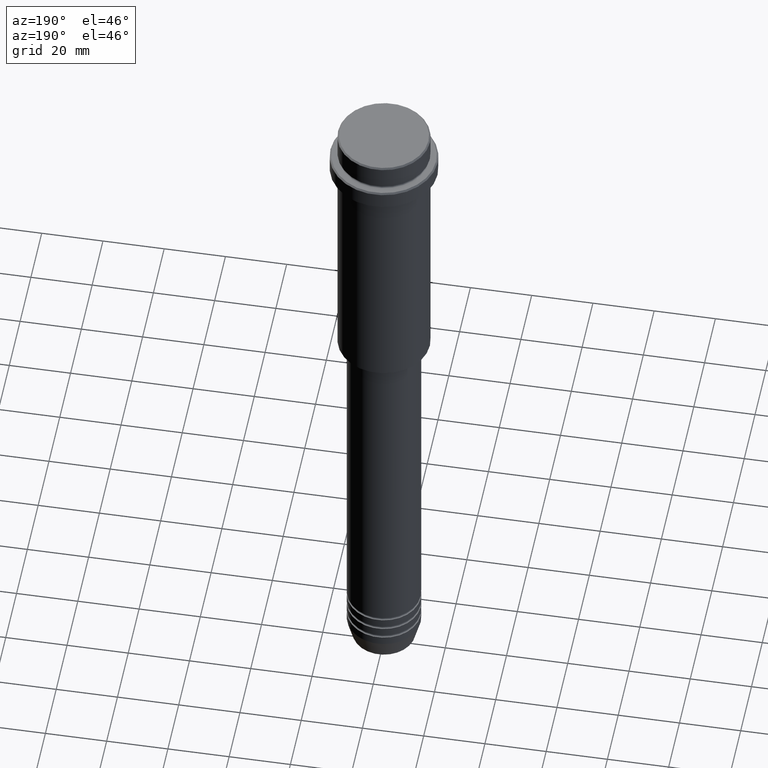
[diagram: clean part render]
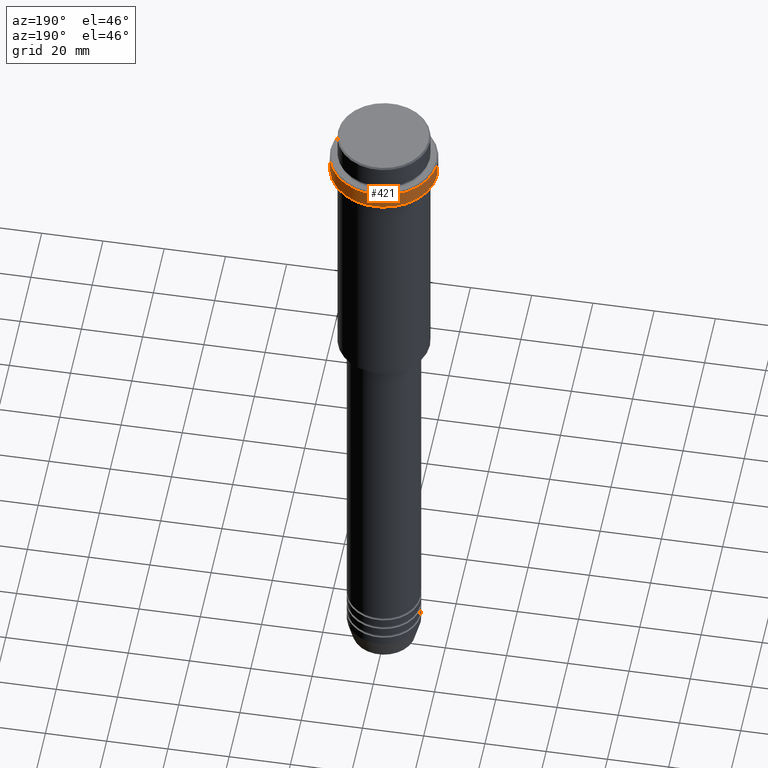
[diagram: same view with one face highlighted and labeled with its STEP entity id]
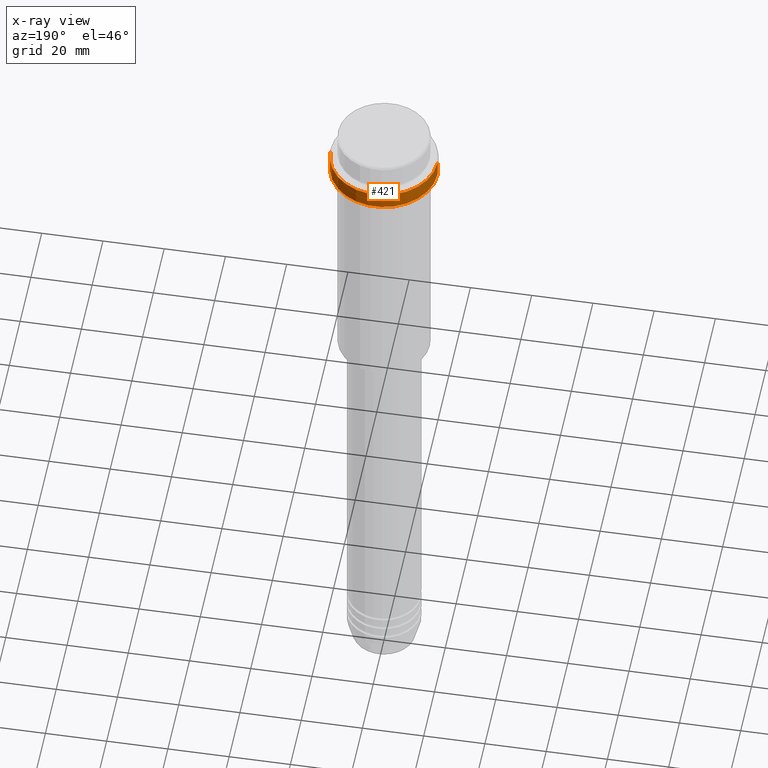
[diagram: x-ray of the same camera — body ghosted, the highlighted face saturated]
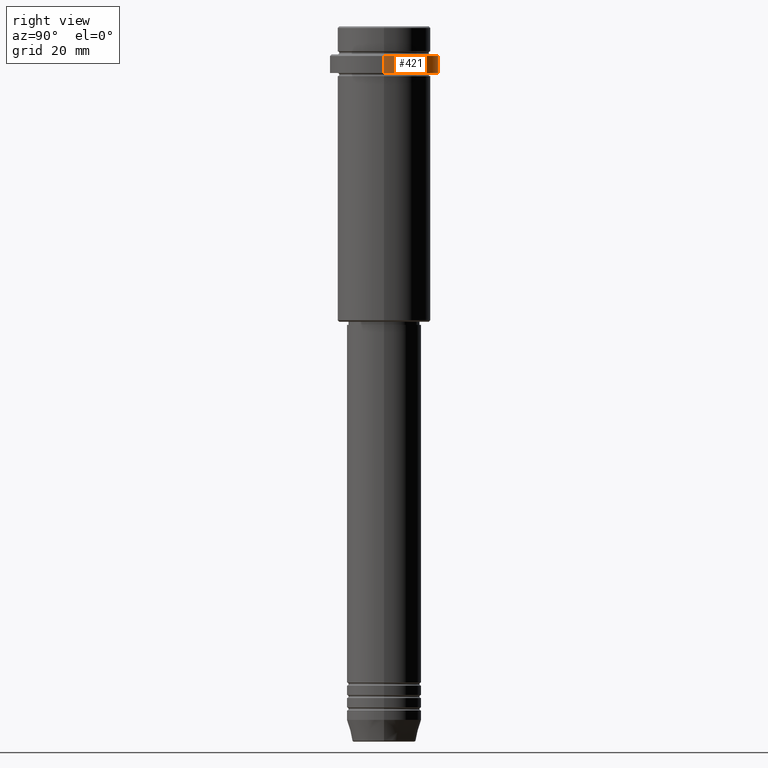
[diagram: same view with one face highlighted and labeled with its STEP entity id]
A machine part, auxiliary view. The second image highlights one B-rep face of the part: STEP entity #421.
The next image is the same camera in x-ray: the body ghosted, the highlighted face saturated — about 0% of this face is hidden behind the body in this view.
A second angle (right view) of the same face is appended — the face is thin or edge-on in the first view.
In plain terms, the highlighted cylindrical surface (partial cylindrical patch) has radius 17.5 mm, axis along (-0, -0, 1).
Its self-contained STEP definition (entity closure, byte-faithful):
#20 = CARTESIAN_POINT ( 'NONE',  ( 17.50000000000000000, 0.000000000000000000, -15.00000000000000000 ) ) ;
#75 = ORIENTED_EDGE ( 'NONE', *, *, #1260, .T. ) ;
#84 = DIRECTION ( 'NONE',  ( -0.000000000000000000, -0.000000000000000000, 1.000000000000000000 ) ) ;
#100 = VERTEX_POINT ( 'NONE', #982 ) ;
#139 = LINE ( 'NONE', #579, #450 ) ;
#141 = CARTESIAN_POINT ( 'NONE',  ( 17.50000000000000000, 0.000000000000000000, 0.000000000000000000 ) ) ;
#154 = EDGE_LOOP ( 'NONE', ( #631, #336, #75, #623 ) ) ;
#155 = EDGE_CURVE ( 'NONE', #946, #100, #139, .T. ) ;
#157 = DIRECTION ( 'NONE',  ( -0.000000000000000000, -0.000000000000000000, 1.000000000000000000 ) ) ;
#164 = CYLINDRICAL_SURFACE ( 'NONE', #926, 17.50000000000000000 ) ;
#233 = EDGE_CURVE ( 'NONE', #908, #946, #649, .T. ) ;
#277 = CARTESIAN_POINT ( 'NONE',  ( 17.50000000000000000, 0.000000000000000000, -9.499999999999971578 ) ) ;
#313 = AXIS2_PLACEMENT_3D ( 'NONE', #962, #1292, #749 ) ;
#336 = ORIENTED_EDGE ( 'NONE', *, *, #155, .T. ) ;
#346 = CARTESIAN_POINT ( 'NONE',  ( -17.50000000000000000, 2.143131898507868248E-15, -15.00000000000000000 ) ) ;
#406 = VECTOR ( 'NONE', #580, 1000.000000000000000 ) ;
#421 = ADVANCED_FACE ( 'NONE', ( #1258 ), #164, .T. ) ;
#450 = VECTOR ( 'NONE', #157, 1000.000000000000000 ) ;
#532 = DIRECTION ( 'NONE',  ( 1.000000000000000000, 0.000000000000000000, 0.000000000000000000 ) ) ;
#579 = CARTESIAN_POINT ( 'NONE',  ( -17.50000000000000000, 2.143131898507868248E-15, 0.000000000000000000 ) ) ;
#580 = DIRECTION ( 'NONE',  ( -0.000000000000000000, -0.000000000000000000, 1.000000000000000000 ) ) ;
#592 = DIRECTION ( 'NONE',  ( 1.000000000000000000, 0.000000000000000000, 0.000000000000000000 ) ) ;
#600 = LINE ( 'NONE', #141, #406 ) ;
#623 = ORIENTED_EDGE ( 'NONE', *, *, #1017, .F. ) ;
#631 = ORIENTED_EDGE ( 'NONE', *, *, #233, .T. ) ;
#649 = CIRCLE ( 'NONE', #1200, 17.50000000000000000 ) ;
#749 = DIRECTION ( 'NONE',  ( 1.000000000000000000, 0.000000000000000000, 0.000000000000000000 ) ) ;
#908 = VERTEX_POINT ( 'NONE', #20 ) ;
#926 = AXIS2_PLACEMENT_3D ( 'NONE', #1077, #84, #532 ) ;
#946 = VERTEX_POINT ( 'NONE', #346 ) ;
#962 = CARTESIAN_POINT ( 'NONE',  ( 0.000000000000000000, 0.000000000000000000, -9.499999999999971578 ) ) ;
#982 = CARTESIAN_POINT ( 'NONE',  ( -17.50000000000000000, 2.143131898507868248E-15, -9.499999999999971578 ) ) ;
#996 = VERTEX_POINT ( 'NONE', #277 ) ;
#1017 = EDGE_CURVE ( 'NONE', #908, #996, #600, .T. ) ;
#1040 = DIRECTION ( 'NONE',  ( -0.000000000000000000, -0.000000000000000000, 1.000000000000000000 ) ) ;
#1077 = CARTESIAN_POINT ( 'NONE',  ( 0.000000000000000000, 0.000000000000000000, 0.000000000000000000 ) ) ;
#1141 = CARTESIAN_POINT ( 'NONE',  ( 0.000000000000000000, 0.000000000000000000, -15.00000000000000000 ) ) ;
#1200 = AXIS2_PLACEMENT_3D ( 'NONE', #1141, #1040, #592 ) ;
#1207 = CIRCLE ( 'NONE', #313, 17.50000000000000000 ) ;
#1258 = FACE_OUTER_BOUND ( 'NONE', #154, .T. ) ;
#1260 = EDGE_CURVE ( 'NONE', #100, #996, #1207, .T. ) ;
#1292 = DIRECTION ( 'NONE',  ( 0.000000000000000000, 0.000000000000000000, -1.000000000000000000 ) ) ;